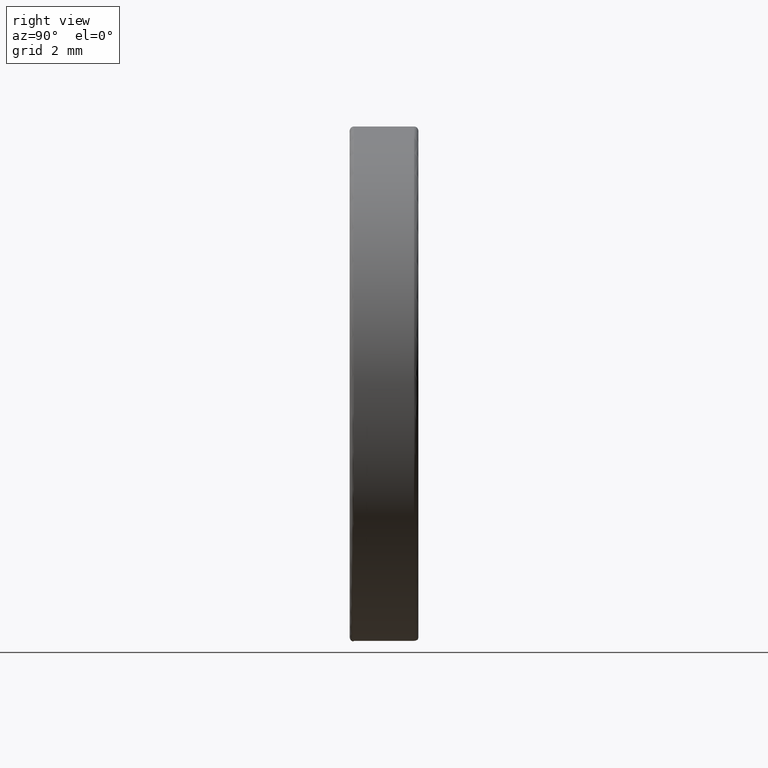
[diagram: clean part render]
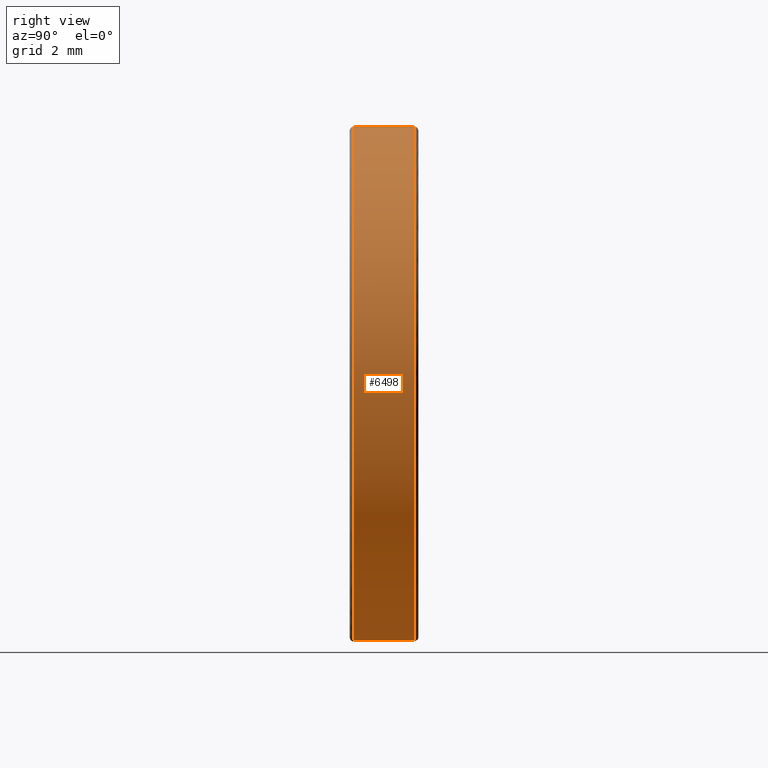
[diagram: same view with one face highlighted and labeled with its STEP entity id]
A machine part, right view. The second image highlights one B-rep face of the part: STEP entity #6498.
In plain terms, the highlighted cylindrical surface (bore or boss wall) has radius 6 mm, axis along (-0, -1, -0).
Its self-contained STEP definition (entity closure, byte-faithful):
#174 = DIRECTION ( 'NONE',  ( -0.0000000000000000000, -1.000000000000000000, -0.0000000000000000000 ) ) ;
#1732 = VERTEX_POINT ( 'NONE', #10704 ) ;
#1973 = EDGE_CURVE ( 'NONE', #5360, #5360, #7683, .T. ) ;
#2084 = CIRCLE ( 'NONE', #8884, 6.000000000000000900 ) ;
#2721 = FACE_OUTER_BOUND ( 'NONE', #3278, .T. ) ;
#3278 = EDGE_LOOP ( 'NONE', ( #15135 ) ) ;
#3829 = CYLINDRICAL_SURFACE ( 'NONE', #13173, 6.000000000000000900 ) ;
#5360 = VERTEX_POINT ( 'NONE', #7170 ) ;
#6498 = ADVANCED_FACE ( 'NONE', ( #2721, #13829 ), #3829, .T. ) ;
#7170 = CARTESIAN_POINT ( 'NONE',  ( 0.0000000000000000000, 0.1000000000000000500, 6.000000000000000900 ) ) ;
#7644 = ORIENTED_EDGE ( 'NONE', *, *, #12770, .T. ) ;
#7683 = CIRCLE ( 'NONE', #15117, 6.000000000000000900 ) ;
#8246 = DIRECTION ( 'NONE',  ( 0.0000000000000000000, 0.0000000000000000000, -1.000000000000000000 ) ) ;
#8884 = AXIS2_PLACEMENT_3D ( 'NONE', #10903, #14536, #14488 ) ;
#9738 = EDGE_LOOP ( 'NONE', ( #7644 ) ) ;
#9988 = CARTESIAN_POINT ( 'NONE',  ( 0.0000000000000000000, 0.1000000000000000500, 0.0000000000000000000 ) ) ;
#10704 = CARTESIAN_POINT ( 'NONE',  ( 0.0000000000000000000, 1.500000000000000000, 6.000000000000000900 ) ) ;
#10903 = CARTESIAN_POINT ( 'NONE',  ( 0.0000000000000000000, 1.500000000000000000, 0.0000000000000000000 ) ) ;
#11792 = CARTESIAN_POINT ( 'NONE',  ( 0.0000000000000000000, 1.600000000000000100, 0.0000000000000000000 ) ) ;
#12770 = EDGE_CURVE ( 'NONE', #1732, #1732, #2084, .T. ) ;
#13173 = AXIS2_PLACEMENT_3D ( 'NONE', #11792, #174, #8246 ) ;
#13586 = DIRECTION ( 'NONE',  ( 0.0000000000000000000, 1.000000000000000000, 0.0000000000000000000 ) ) ;
#13829 = FACE_OUTER_BOUND ( 'NONE', #9738, .T. ) ;
#14488 = DIRECTION ( 'NONE',  ( 0.0000000000000000000, 0.0000000000000000000, 1.000000000000000000 ) ) ;
#14536 = DIRECTION ( 'NONE',  ( -0.0000000000000000000, -1.000000000000000000, -0.0000000000000000000 ) ) ;
#14779 = DIRECTION ( 'NONE',  ( 0.0000000000000000000, 0.0000000000000000000, 1.000000000000000000 ) ) ;
#15117 = AXIS2_PLACEMENT_3D ( 'NONE', #9988, #13586, #14779 ) ;
#15135 = ORIENTED_EDGE ( 'NONE', *, *, #1973, .T. ) ;